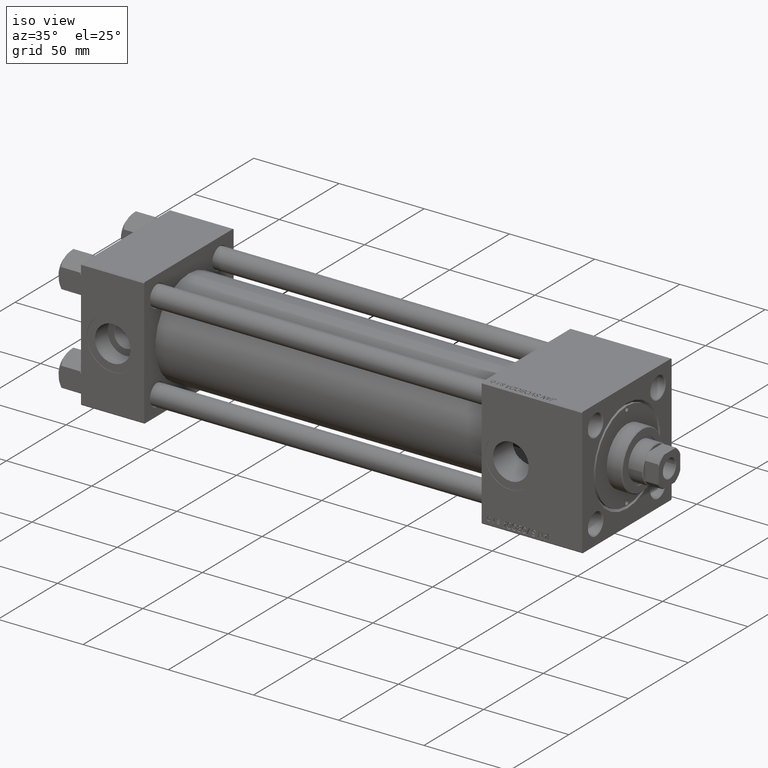
[diagram: clean part render]
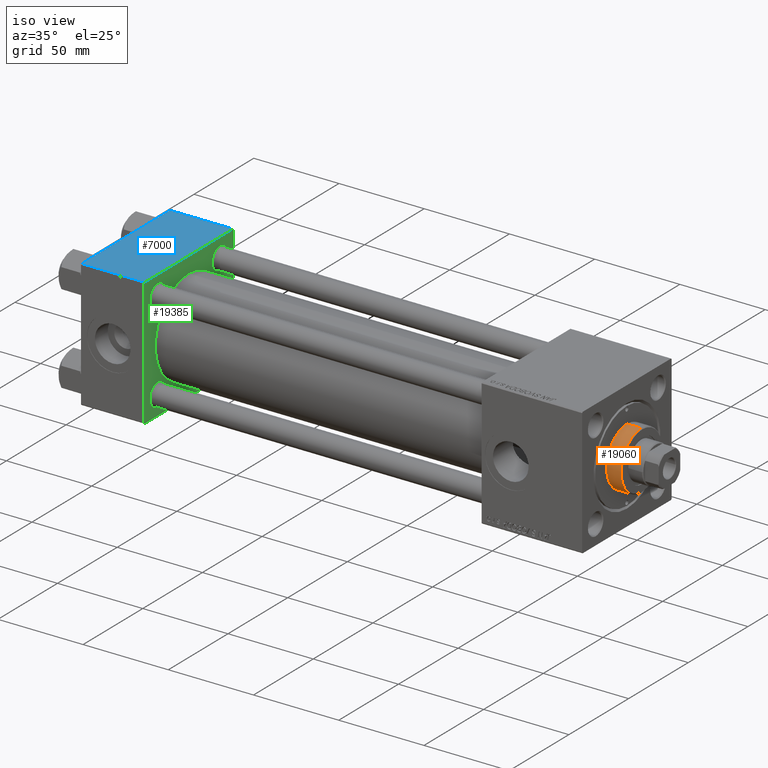
[diagram: same view with three faces highlighted in distinct colors, each labeled with its STEP entity id]
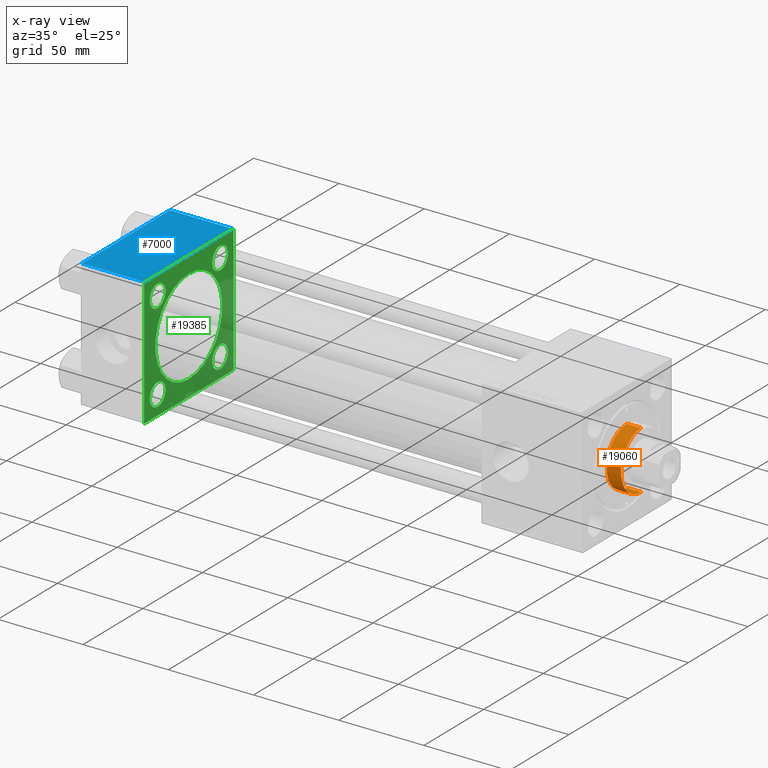
[diagram: x-ray of the same camera — body ghosted, the three highlighted faces saturated]
A machine part, iso view with three faces highlighted in distinct colors.
The next image is the same camera in x-ray (body ghosted, the three faces saturated) — at least one of them is partly hidden behind the body in this view.
Their STEP definitions:

[orange] entity #19060 — the highlighted cylindrical surface (edge-blend (fillet) strip) has radius 17 mm, axis along (-1, -0, -0).
#25 = EDGE_CURVE ( 'NONE', #36176, #4770, #1170, .T. ) ;
#1170 = LINE ( 'NONE', #12396, #35312 ) ;
#2444 = CYLINDRICAL_SURFACE ( 'NONE', #3334, 17.00000000000000000 ) ;
#3334 = AXIS2_PLACEMENT_3D ( 'NONE', #40919, #44478, #6530 ) ;
#3516 = ORIENTED_EDGE ( 'NONE', *, *, #32677, .T. ) ;
#4465 = DIRECTION ( 'NONE',  ( 1.000000000000000000, 0.000000000000000000, 0.000000000000000000 ) ) ;
#4587 = VECTOR ( 'NONE', #14565, 1000.000000000000000 ) ;
#4770 = VERTEX_POINT ( 'NONE', #19805 ) ;
#6345 = DIRECTION ( 'NONE',  ( 1.000000000000000000, 0.000000000000000000, 0.000000000000000000 ) ) ;
#6530 = DIRECTION ( 'NONE',  ( -1.000000000000000000, 0.000000000000000000, 0.000000000000000000 ) ) ;
#6601 = CARTESIAN_POINT ( 'NONE',  ( -17.00000000000000000, 0.000000000000000000, 37.19999999999999574 ) ) ;
#7119 = DIRECTION ( 'NONE',  ( 0.000000000000000000, 0.000000000000000000, -1.000000000000000000 ) ) ;
#10423 = CARTESIAN_POINT ( 'NONE',  ( 0.000000000000000000, 0.000000000000000000, 37.19999999999999574 ) ) ;
#10562 = CARTESIAN_POINT ( 'NONE',  ( -17.00000000000000000, 0.000000000000000000, 28.69999999999999929 ) ) ;
#11076 = CIRCLE ( 'NONE', #50102, 17.00000000000000000 ) ;
#12396 = CARTESIAN_POINT ( 'NONE',  ( 17.00000000000000000, 2.081899558550500280E-15, 37.69999999999999574 ) ) ;
#14565 = DIRECTION ( 'NONE',  ( -0.000000000000000000, -0.000000000000000000, -1.000000000000000000 ) ) ;
#16722 = DIRECTION ( 'NONE',  ( -0.000000000000000000, -0.000000000000000000, -1.000000000000000000 ) ) ;
#19060 = ADVANCED_FACE ( 'NONE', ( #29720 ), #2444, .T. ) ;
#19805 = CARTESIAN_POINT ( 'NONE',  ( 17.00000000000000000, 2.081899558550500280E-15, 28.69999999999999929 ) ) ;
#22862 = DIRECTION ( 'NONE',  ( 0.000000000000000000, 0.000000000000000000, 1.000000000000000000 ) ) ;
#23362 = ORIENTED_EDGE ( 'NONE', *, *, #32078, .T. ) ;
#27368 = ORIENTED_EDGE ( 'NONE', *, *, #25, .F. ) ;
#29720 = FACE_OUTER_BOUND ( 'NONE', #43962, .T. ) ;
#32078 = EDGE_CURVE ( 'NONE', #42683, #4770, #11076, .T. ) ;
#32597 = CARTESIAN_POINT ( 'NONE',  ( 17.00000000000000000, 2.081899558550500280E-15, 37.19999999999999574 ) ) ;
#32677 = EDGE_CURVE ( 'NONE', #36176, #32723, #44308, .T. ) ;
#32723 = VERTEX_POINT ( 'NONE', #6601 ) ;
#32903 = AXIS2_PLACEMENT_3D ( 'NONE', #10423, #7119, #6345 ) ;
#33661 = CARTESIAN_POINT ( 'NONE',  ( -17.00000000000000000, 0.000000000000000000, 37.69999999999999574 ) ) ;
#35312 = VECTOR ( 'NONE', #16722, 1000.000000000000000 ) ;
#35460 = EDGE_CURVE ( 'NONE', #32723, #42683, #41556, .T. ) ;
#36176 = VERTEX_POINT ( 'NONE', #32597 ) ;
#36353 = ORIENTED_EDGE ( 'NONE', *, *, #35460, .T. ) ;
#39368 = CARTESIAN_POINT ( 'NONE',  ( 0.000000000000000000, 0.000000000000000000, 28.69999999999999929 ) ) ;
#40919 = CARTESIAN_POINT ( 'NONE',  ( 0.000000000000000000, 0.000000000000000000, 37.69999999999999574 ) ) ;
#41556 = LINE ( 'NONE', #33661, #4587 ) ;
#42683 = VERTEX_POINT ( 'NONE', #10562 ) ;
#43962 = EDGE_LOOP ( 'NONE', ( #27368, #3516, #36353, #23362 ) ) ;
#44308 = CIRCLE ( 'NONE', #32903, 17.00000000000000000 ) ;
#44478 = DIRECTION ( 'NONE',  ( -0.000000000000000000, -0.000000000000000000, -1.000000000000000000 ) ) ;
#50102 = AXIS2_PLACEMENT_3D ( 'NONE', #39368, #22862, #4465 ) ;

[blue] entity #7000 — the highlighted planar face has unit normal (0, 0, -1).
#2100 = VECTOR ( 'NONE', #39996, 1000.000000000000000 ) ;
#2172 = LINE ( 'NONE', #44952, #45679 ) ;
#4023 = PLANE ( 'NONE',  #20096 ) ;
#4103 = CARTESIAN_POINT ( 'NONE',  ( 0.000000000000000000, -37.00000000000000711, 37.49999999999999289 ) ) ;
#4221 = DIRECTION ( 'NONE',  ( 1.000000000000000000, 0.000000000000000000, 0.000000000000000000 ) ) ;
#7000 = ADVANCED_FACE ( 'NONE', ( #38925 ), #4023, .F. ) ;
#9244 = VECTOR ( 'NONE', #49092, 1000.000000000000000 ) ;
#9433 = CARTESIAN_POINT ( 'NONE',  ( 37.00000000000000000, -37.00000000000000711, 37.49999999999999289 ) ) ;
#10059 = DIRECTION ( 'NONE',  ( 0.000000000000000000, -1.000000000000000000, -9.251858538542971581E-17 ) ) ;
#11185 = LINE ( 'NONE', #34621, #9244 ) ;
#13922 = ORIENTED_EDGE ( 'NONE', *, *, #17052, .F. ) ;
#14749 = DIRECTION ( 'NONE',  ( 0.000000000000000000, 1.000000000000000000, 9.251858538542971581E-17 ) ) ;
#15757 = DIRECTION ( 'NONE',  ( 0.000000000000000000, 9.251858538542971581E-17, -1.000000000000000000 ) ) ;
#17052 = EDGE_CURVE ( 'NONE', #40065, #25525, #2172, .T. ) ;
#17312 = CARTESIAN_POINT ( 'NONE',  ( 0.000000000000000000, 37.49999999999999289, 37.50000000000000000 ) ) ;
#19587 = CARTESIAN_POINT ( 'NONE',  ( 37.00000000000000000, 37.49999999999999289, 37.50000000000000000 ) ) ;
#20096 = AXIS2_PLACEMENT_3D ( 'NONE', #19587, #15757, #14749 ) ;
#24579 = ORIENTED_EDGE ( 'NONE', *, *, #47433, .T. ) ;
#25525 = VERTEX_POINT ( 'NONE', #9433 ) ;
#25908 = CARTESIAN_POINT ( 'NONE',  ( 37.00000000000000000, -37.00000000000000711, 37.49999999999999289 ) ) ;
#28773 = LINE ( 'NONE', #17312, #2100 ) ;
#29731 = LINE ( 'NONE', #25908, #38633 ) ;
#31363 = ORIENTED_EDGE ( 'NONE', *, *, #33025, .T. ) ;
#32074 = CARTESIAN_POINT ( 'NONE',  ( 37.00000000000000000, 36.99999999999999289, 37.50000000000000000 ) ) ;
#33025 = EDGE_CURVE ( 'NONE', #37081, #25525, #29731, .T. ) ;
#34621 = CARTESIAN_POINT ( 'NONE',  ( 0.000000000000000000, 36.99999999999999289, 37.50000000000000000 ) ) ;
#36197 = EDGE_CURVE ( 'NONE', #44239, #37081, #28773, .T. ) ;
#37081 = VERTEX_POINT ( 'NONE', #4103 ) ;
#38633 = VECTOR ( 'NONE', #4221, 1000.000000000000000 ) ;
#38925 = FACE_OUTER_BOUND ( 'NONE', #46653, .T. ) ;
#39996 = DIRECTION ( 'NONE',  ( 0.000000000000000000, -1.000000000000000000, -9.251858538542971581E-17 ) ) ;
#40065 = VERTEX_POINT ( 'NONE', #32074 ) ;
#42534 = ORIENTED_EDGE ( 'NONE', *, *, #36197, .T. ) ;
#44239 = VERTEX_POINT ( 'NONE', #45843 ) ;
#44952 = CARTESIAN_POINT ( 'NONE',  ( 37.00000000000000000, 37.49999999999999289, 37.50000000000000000 ) ) ;
#45679 = VECTOR ( 'NONE', #10059, 1000.000000000000000 ) ;
#45843 = CARTESIAN_POINT ( 'NONE',  ( 0.000000000000000000, 36.99999999999999289, 37.50000000000000000 ) ) ;
#46653 = EDGE_LOOP ( 'NONE', ( #42534, #31363, #13922, #24579 ) ) ;
#47433 = EDGE_CURVE ( 'NONE', #40065, #44239, #11185, .T. ) ;
#49092 = DIRECTION ( 'NONE',  ( -1.000000000000000000, 0.000000000000000000, 0.000000000000000000 ) ) ;

[green] entity #19385 — the highlighted planar face has unit normal (-1, 0, 0).
#253 = VERTEX_POINT ( 'NONE', #37320 ) ;
#662 = CARTESIAN_POINT ( 'NONE',  ( 37.00000000000000000, 37.49999999999999289, -36.99999999999998579 ) ) ;
#691 = VERTEX_POINT ( 'NONE', #34091 ) ;
#849 = VECTOR ( 'NONE', #48105, 1000.000000000000000 ) ;
#1100 = CARTESIAN_POINT ( 'NONE',  ( 37.00000000000000000, -37.50000000000000711, 36.99999999999999289 ) ) ;
#1255 = CARTESIAN_POINT ( 'NONE',  ( 37.00000000000000000, -26.14999999999999147, 26.15000000000000924 ) ) ;
#2094 = EDGE_CURVE ( 'NONE', #40976, #24663, #16696, .T. ) ;
#2172 = LINE ( 'NONE', #44952, #45679 ) ;
#2354 = EDGE_LOOP ( 'NONE', ( #29652, #21804, #27058, #34990, #31461, #24524, #18468, #8244 ) ) ;
#2914 = EDGE_CURVE ( 'NONE', #253, #41078, #48381, .T. ) ;
#3232 = CIRCLE ( 'NONE', #24380, 6.500000000000002665 ) ;
#3655 = ORIENTED_EDGE ( 'NONE', *, *, #9679, .T. ) ;
#3838 = CARTESIAN_POINT ( 'NONE',  ( 37.00000000000000000, 37.49999999999999289, -37.50000000000000000 ) ) ;
#4629 = DIRECTION ( 'NONE',  ( -1.000000000000000000, 0.000000000000000000, -0.000000000000000000 ) ) ;
#4903 = VERTEX_POINT ( 'NONE', #38831 ) ;
#4963 = VERTEX_POINT ( 'NONE', #1100 ) ;
#5361 = EDGE_CURVE ( 'NONE', #25525, #4963, #41084, .T. ) ;
#5495 = CARTESIAN_POINT ( 'NONE',  ( 37.00000000000000000, -26.14999999999999147, -32.65000000000001279 ) ) ;
#5860 = CARTESIAN_POINT ( 'NONE',  ( 37.00000000000000000, -26.14999999999999147, -26.15000000000000924 ) ) ;
#5943 = PLANE ( 'NONE',  #35042 ) ;
#6393 = DIRECTION ( 'NONE',  ( 0.000000000000000000, 0.000000000000000000, 1.000000000000000000 ) ) ;
#6815 = DIRECTION ( 'NONE',  ( 0.000000000000000000, 0.000000000000000000, -1.000000000000000000 ) ) ;
#6887 = DIRECTION ( 'NONE',  ( 0.000000000000000000, 0.000000000000000000, 1.000000000000000000 ) ) ;
#7565 = VECTOR ( 'NONE', #36084, 1000.000000000000000 ) ;
#7826 = EDGE_CURVE ( 'NONE', #35703, #40065, #9958, .T. ) ;
#8083 = CARTESIAN_POINT ( 'NONE',  ( 37.00000000000000711, 8.269258236473784371E-16, -28.00000000000000000 ) ) ;
#8244 = ORIENTED_EDGE ( 'NONE', *, *, #45214, .T. ) ;
#8660 = EDGE_CURVE ( 'NONE', #33892, #9227, #25041, .T. ) ;
#8946 = CARTESIAN_POINT ( 'NONE',  ( 37.00000000000000000, 26.14999999999999858, 26.15000000000000213 ) ) ;
#9227 = VERTEX_POINT ( 'NONE', #35268 ) ;
#9433 = CARTESIAN_POINT ( 'NONE',  ( 37.00000000000000000, -37.00000000000000711, 37.49999999999999289 ) ) ;
#9679 = EDGE_CURVE ( 'NONE', #9227, #33892, #3232, .T. ) ;
#9936 = DIRECTION ( 'NONE',  ( -1.000000000000000000, 0.000000000000000000, -0.000000000000000000 ) ) ;
#9958 = LINE ( 'NONE', #40788, #26637 ) ;
#10019 = DIRECTION ( 'NONE',  ( -0.000000000000000000, 0.000000000000000000, 1.000000000000000000 ) ) ;
#10030 = ORIENTED_EDGE ( 'NONE', *, *, #8660, .T. ) ;
#10059 = DIRECTION ( 'NONE',  ( 0.000000000000000000, -1.000000000000000000, -9.251858538542971581E-17 ) ) ;
#10142 = AXIS2_PLACEMENT_3D ( 'NONE', #1255, #36631, #29005 ) ;
#10451 = DIRECTION ( 'NONE',  ( -1.000000000000000000, 0.000000000000000000, -0.000000000000000000 ) ) ;
#10529 = DIRECTION ( 'NONE',  ( 0.000000000000000000, 0.000000000000000000, 1.000000000000000000 ) ) ;
#10539 = FACE_BOUND ( 'NONE', #10877, .T. ) ;
#10783 = DIRECTION ( 'NONE',  ( -1.000000000000000000, 0.000000000000000000, -0.000000000000000000 ) ) ;
#10877 = EDGE_LOOP ( 'NONE', ( #10030, #3655 ) ) ;
#11003 = CIRCLE ( 'NONE', #10142, 6.500000000000008882 ) ;
#11829 = AXIS2_PLACEMENT_3D ( 'NONE', #38542, #10783, #46419 ) ;
#11857 = CARTESIAN_POINT ( 'NONE',  ( 37.00000000000000711, -2.602085213965210642E-15, 0.000000000000000000 ) ) ;
#13450 = AXIS2_PLACEMENT_3D ( 'NONE', #14364, #29903, #10529 ) ;
#13491 = EDGE_LOOP ( 'NONE', ( #16465, #13575 ) ) ;
#13566 = CARTESIAN_POINT ( 'NONE',  ( 37.00000000000000000, 26.14999999999999858, 32.65000000000001279 ) ) ;
#13575 = ORIENTED_EDGE ( 'NONE', *, *, #17504, .T. ) ;
#14071 = ORIENTED_EDGE ( 'NONE', *, *, #2914, .T. ) ;
#14364 = CARTESIAN_POINT ( 'NONE',  ( 37.00000000000000000, 26.14999999999999858, -26.15000000000000213 ) ) ;
#14936 = DIRECTION ( 'NONE',  ( 0.000000000000000000, 0.000000000000000000, 1.000000000000000000 ) ) ;
#15111 = AXIS2_PLACEMENT_3D ( 'NONE', #48473, #35791, #43680 ) ;
#15171 = VERTEX_POINT ( 'NONE', #662 ) ;
#15193 = AXIS2_PLACEMENT_3D ( 'NONE', #26360, #46447, #27117 ) ;
#15311 = LINE ( 'NONE', #3838, #30330 ) ;
#15508 = EDGE_CURVE ( 'NONE', #4963, #691, #41000, .T. ) ;
#15667 = ORIENTED_EDGE ( 'NONE', *, *, #2094, .F. ) ;
#16465 = ORIENTED_EDGE ( 'NONE', *, *, #31275, .T. ) ;
#16696 = CIRCLE ( 'NONE', #43510, 28.00000000000000000 ) ;
#16705 = CIRCLE ( 'NONE', #11829, 6.500000000000002665 ) ;
#17052 = EDGE_CURVE ( 'NONE', #40065, #25525, #2172, .T. ) ;
#17054 = CARTESIAN_POINT ( 'NONE',  ( 37.00000000000000000, 37.49999999999999289, 37.00000000000000000 ) ) ;
#17504 = EDGE_CURVE ( 'NONE', #20878, #4903, #28592, .T. ) ;
#17610 = CARTESIAN_POINT ( 'NONE',  ( 37.00000000000000000, -26.14999999999999147, 19.65000000000000213 ) ) ;
#17731 = DIRECTION ( 'NONE',  ( -0.000000000000000000, 0.7071067811865474617, 0.7071067811865474617 ) ) ;
#17938 = FACE_BOUND ( 'NONE', #41514, .T. ) ;
#18203 = FACE_BOUND ( 'NONE', #34204, .T. ) ;
#18468 = ORIENTED_EDGE ( 'NONE', *, *, #15508, .T. ) ;
#19057 = CARTESIAN_POINT ( 'NONE',  ( 37.00000000000000000, 26.14999999999999858, -32.65000000000000568 ) ) ;
#19279 = CIRCLE ( 'NONE', #15193, 28.00000000000000000 ) ;
#19385 = ADVANCED_FACE ( 'NONE', ( #10539, #17938, #29137, #26081, #18203, #44907 ), #5943, .F. ) ;
#20140 = VECTOR ( 'NONE', #6815, 1000.000000000000000 ) ;
#20275 = VERTEX_POINT ( 'NONE', #36669 ) ;
#20320 = LINE ( 'NONE', #20567, #7565 ) ;
#20567 = CARTESIAN_POINT ( 'NONE',  ( 37.00000000000000000, -37.00000000000002132, -37.50000000000000711 ) ) ;
#20878 = VERTEX_POINT ( 'NONE', #13566 ) ;
#21153 = CARTESIAN_POINT ( 'NONE',  ( 37.00000000000000000, -37.50000000000000711, 37.49999999999999289 ) ) ;
#21654 = CIRCLE ( 'NONE', #30622, 6.500000000000002665 ) ;
#21804 = ORIENTED_EDGE ( 'NONE', *, *, #27027, .T. ) ;
#24380 = AXIS2_PLACEMENT_3D ( 'NONE', #5860, #9936, #36449 ) ;
#24524 = ORIENTED_EDGE ( 'NONE', *, *, #5361, .T. ) ;
#24663 = VERTEX_POINT ( 'NONE', #8083 ) ;
#24808 = ORIENTED_EDGE ( 'NONE', *, *, #36645, .F. ) ;
#24855 = ORIENTED_EDGE ( 'NONE', *, *, #29902, .T. ) ;
#25041 = CIRCLE ( 'NONE', #34009, 6.500000000000002665 ) ;
#25525 = VERTEX_POINT ( 'NONE', #9433 ) ;
#26081 = FACE_BOUND ( 'NONE', #13491, .T. ) ;
#26360 = CARTESIAN_POINT ( 'NONE',  ( 37.00000000000000711, -2.602085213965210642E-15, 0.000000000000000000 ) ) ;
#26637 = VECTOR ( 'NONE', #36961, 1000.000000000000114 ) ;
#26660 = DIRECTION ( 'NONE',  ( 1.000000000000000000, -0.000000000000000000, 0.000000000000000000 ) ) ;
#27027 = EDGE_CURVE ( 'NONE', #20275, #15171, #32757, .T. ) ;
#27058 = ORIENTED_EDGE ( 'NONE', *, *, #38574, .F. ) ;
#27117 = DIRECTION ( 'NONE',  ( 0.000000000000000000, 0.000000000000000000, 1.000000000000000000 ) ) ;
#28292 = VERTEX_POINT ( 'NONE', #39649 ) ;
#28592 = CIRCLE ( 'NONE', #41624, 6.500000000000002665 ) ;
#29005 = DIRECTION ( 'NONE',  ( 0.000000000000000000, 0.000000000000000000, 1.000000000000000000 ) ) ;
#29114 = CARTESIAN_POINT ( 'NONE',  ( 37.00000000000000000, -37.50000000000000711, 36.99999999999999289 ) ) ;
#29137 = FACE_BOUND ( 'NONE', #39499, .T. ) ;
#29652 = ORIENTED_EDGE ( 'NONE', *, *, #44856, .F. ) ;
#29697 = CARTESIAN_POINT ( 'NONE',  ( 37.00000000000000000, 37.49999999999999289, -36.99999999999998579 ) ) ;
#29902 = EDGE_CURVE ( 'NONE', #41078, #253, #11003, .T. ) ;
#29903 = DIRECTION ( 'NONE',  ( -1.000000000000000000, 0.000000000000000000, -0.000000000000000000 ) ) ;
#30180 = EDGE_CURVE ( 'NONE', #42458, #28292, #16705, .T. ) ;
#30262 = LINE ( 'NONE', #33561, #20140 ) ;
#30300 = EDGE_CURVE ( 'NONE', #28292, #42458, #45152, .T. ) ;
#30330 = VECTOR ( 'NONE', #33709, 1000.000000000000000 ) ;
#30622 = AXIS2_PLACEMENT_3D ( 'NONE', #49152, #41298, #6393 ) ;
#30954 = ORIENTED_EDGE ( 'NONE', *, *, #30180, .T. ) ;
#31275 = EDGE_CURVE ( 'NONE', #4903, #20878, #21654, .T. ) ;
#31461 = ORIENTED_EDGE ( 'NONE', *, *, #17052, .T. ) ;
#32074 = CARTESIAN_POINT ( 'NONE',  ( 37.00000000000000000, 36.99999999999999289, 37.50000000000000000 ) ) ;
#32757 = LINE ( 'NONE', #29697, #36898 ) ;
#33189 = DIRECTION ( 'NONE',  ( -0.000000000000000000, -0.7071067811865474617, -0.7071067811865474617 ) ) ;
#33561 = CARTESIAN_POINT ( 'NONE',  ( 37.00000000000000000, 37.49999999999999289, 37.50000000000000000 ) ) ;
#33709 = DIRECTION ( 'NONE',  ( 0.000000000000000000, -1.000000000000000000, -9.251858538542972814E-17 ) ) ;
#33892 = VERTEX_POINT ( 'NONE', #5495 ) ;
#34009 = AXIS2_PLACEMENT_3D ( 'NONE', #41790, #10451, #6887 ) ;
#34091 = CARTESIAN_POINT ( 'NONE',  ( 37.00000000000000000, -37.50000000000000000, -37.00000000000003553 ) ) ;
#34204 = EDGE_LOOP ( 'NONE', ( #15667, #24808 ) ) ;
#34990 = ORIENTED_EDGE ( 'NONE', *, *, #7826, .T. ) ;
#35042 = AXIS2_PLACEMENT_3D ( 'NONE', #40851, #37025, #10019 ) ;
#35268 = CARTESIAN_POINT ( 'NONE',  ( 37.00000000000000000, -26.14999999999999147, -19.65000000000000924 ) ) ;
#35703 = VERTEX_POINT ( 'NONE', #17054 ) ;
#35709 = CARTESIAN_POINT ( 'NONE',  ( 37.00000000000000711, -2.602085213965210642E-15, 28.00000000000000000 ) ) ;
#35791 = DIRECTION ( 'NONE',  ( -1.000000000000000000, 0.000000000000000000, -0.000000000000000000 ) ) ;
#36084 = DIRECTION ( 'NONE',  ( 0.000000000000000000, 0.7071067811865524577, -0.7071067811865426878 ) ) ;
#36449 = DIRECTION ( 'NONE',  ( 0.000000000000000000, 0.000000000000000000, 1.000000000000000000 ) ) ;
#36631 = DIRECTION ( 'NONE',  ( -1.000000000000000000, 0.000000000000000000, -0.000000000000000000 ) ) ;
#36645 = EDGE_CURVE ( 'NONE', #24663, #40976, #19279, .T. ) ;
#36669 = CARTESIAN_POINT ( 'NONE',  ( 37.00000000000000000, 36.99999999999997868, -37.50000000000000000 ) ) ;
#36898 = VECTOR ( 'NONE', #17731, 1000.000000000000114 ) ;
#36961 = DIRECTION ( 'NONE',  ( 0.000000000000000000, -0.7071067811865474617, 0.7071067811865474617 ) ) ;
#37025 = DIRECTION ( 'NONE',  ( -1.000000000000000000, 0.000000000000000000, -0.000000000000000000 ) ) ;
#37320 = CARTESIAN_POINT ( 'NONE',  ( 37.00000000000000000, -26.14999999999999147, 32.65000000000001990 ) ) ;
#38542 = CARTESIAN_POINT ( 'NONE',  ( 37.00000000000000000, 26.14999999999999858, -26.15000000000000213 ) ) ;
#38574 = EDGE_CURVE ( 'NONE', #35703, #15171, #30262, .T. ) ;
#38773 = VECTOR ( 'NONE', #33189, 1000.000000000000114 ) ;
#38831 = CARTESIAN_POINT ( 'NONE',  ( 37.00000000000000000, 26.14999999999999858, 19.64999999999999858 ) ) ;
#39499 = EDGE_LOOP ( 'NONE', ( #24855, #14071 ) ) ;
#39649 = CARTESIAN_POINT ( 'NONE',  ( 37.00000000000000000, 26.14999999999999858, -19.65000000000000213 ) ) ;
#40065 = VERTEX_POINT ( 'NONE', #32074 ) ;
#40172 = VERTEX_POINT ( 'NONE', #44015 ) ;
#40788 = CARTESIAN_POINT ( 'NONE',  ( 37.00000000000000000, 36.99999999999999289, 37.50000000000000000 ) ) ;
#40851 = CARTESIAN_POINT ( 'NONE',  ( 37.00000000000000000, 0.000000000000000000, 0.000000000000000000 ) ) ;
#40976 = VERTEX_POINT ( 'NONE', #35709 ) ;
#41000 = LINE ( 'NONE', #21153, #849 ) ;
#41078 = VERTEX_POINT ( 'NONE', #17610 ) ;
#41084 = LINE ( 'NONE', #29114, #38773 ) ;
#41298 = DIRECTION ( 'NONE',  ( -1.000000000000000000, 0.000000000000000000, -0.000000000000000000 ) ) ;
#41514 = EDGE_LOOP ( 'NONE', ( #30954, #42035 ) ) ;
#41624 = AXIS2_PLACEMENT_3D ( 'NONE', #8946, #4629, #47392 ) ;
#41790 = CARTESIAN_POINT ( 'NONE',  ( 37.00000000000000000, -26.14999999999999147, -26.15000000000000924 ) ) ;
#42035 = ORIENTED_EDGE ( 'NONE', *, *, #30300, .T. ) ;
#42458 = VERTEX_POINT ( 'NONE', #19057 ) ;
#43510 = AXIS2_PLACEMENT_3D ( 'NONE', #11857, #26660, #14936 ) ;
#43680 = DIRECTION ( 'NONE',  ( 0.000000000000000000, 0.000000000000000000, 1.000000000000000000 ) ) ;
#44015 = CARTESIAN_POINT ( 'NONE',  ( 37.00000000000000000, -37.00000000000002132, -37.50000000000000711 ) ) ;
#44856 = EDGE_CURVE ( 'NONE', #20275, #40172, #15311, .T. ) ;
#44907 = FACE_OUTER_BOUND ( 'NONE', #2354, .T. ) ;
#44952 = CARTESIAN_POINT ( 'NONE',  ( 37.00000000000000000, 37.49999999999999289, 37.50000000000000000 ) ) ;
#45152 = CIRCLE ( 'NONE', #13450, 6.500000000000002665 ) ;
#45214 = EDGE_CURVE ( 'NONE', #691, #40172, #20320, .T. ) ;
#45679 = VECTOR ( 'NONE', #10059, 1000.000000000000000 ) ;
#46419 = DIRECTION ( 'NONE',  ( 0.000000000000000000, 0.000000000000000000, 1.000000000000000000 ) ) ;
#46447 = DIRECTION ( 'NONE',  ( 1.000000000000000000, -0.000000000000000000, 0.000000000000000000 ) ) ;
#47392 = DIRECTION ( 'NONE',  ( 0.000000000000000000, 0.000000000000000000, 1.000000000000000000 ) ) ;
#48105 = DIRECTION ( 'NONE',  ( 0.000000000000000000, 9.251858538542971581E-17, -1.000000000000000000 ) ) ;
#48381 = CIRCLE ( 'NONE', #15111, 6.500000000000008882 ) ;
#48473 = CARTESIAN_POINT ( 'NONE',  ( 37.00000000000000000, -26.14999999999999147, 26.15000000000000924 ) ) ;
#49152 = CARTESIAN_POINT ( 'NONE',  ( 37.00000000000000000, 26.14999999999999858, 26.15000000000000213 ) ) ;